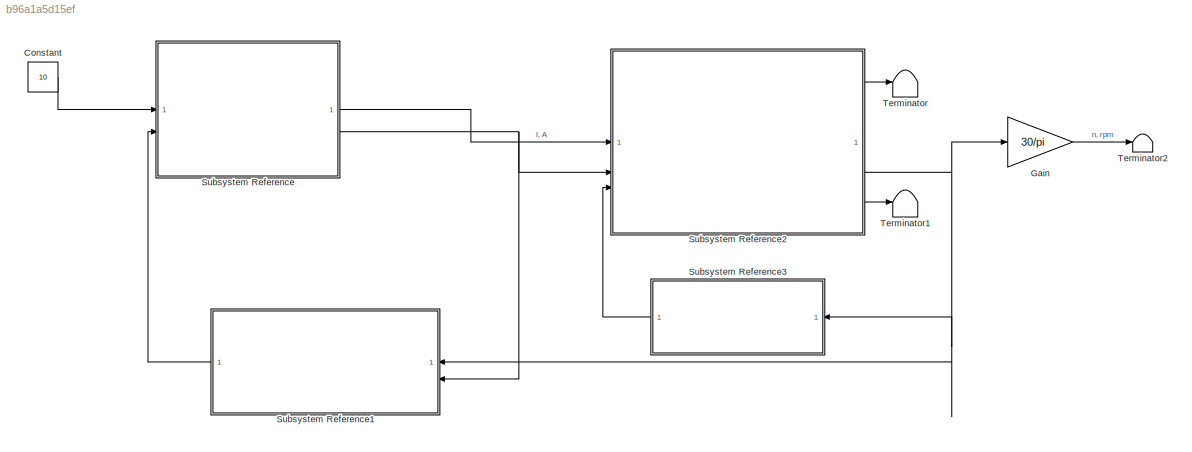
MODEL slx_b96a1a5d15ef
KIND model
CONFIG AbsTol = auto
CONFIG EnableMultiTasking = off
CONFIG FixedStep = auto
CONFIG MaxStep = auto
CONFIG MinStep = auto
CONFIG RelTol = 1e-3
CONFIG SampleTimeConstraint = Unconstrained
CONFIG SolverName = VariableStepAuto
CONFIG StartTime = 0.0
CONFIG StopTime = 10.0
BLOCK [Constant] Constant
  Value = 10
BLOCK [Gain] Gain
  Gain = 30/pi
BLOCK [SubSystem] Subsystem Reference
  L_a = L_a
  L_ew = L_ew
  R_a = R_a
  ReferencedSubsystem = InVoltage_to_AnchorCurrent
BLOCK [SubSystem] Subsystem Reference1
  C_omega = C_omega
  PortSchema = {"entries":[{"content":{"sides":[{"content":{"connectorIds":["In2","In1"]},"type":"ConnectorPlacement.EquallySpacedRectSide","uuid":"3b001cd2-0eb1-4e79-bfc0-23597a26966a"},{"content":{"connectorIds":["Out1"],"side":"RIGHT"},"type":"ConnectorPlacement.EquallySpacedRectSide","uuid":"d4852c84-8cb3-4d1c-be31-f1725de136a3"},{"content":{"side":"TOP"},"type":"ConnectorPlacement.EquallySpacedRectSide","uu...<+228ch>
  ReferencedSubsystem = Back_EMP
BLOCK [SubSystem] Subsystem Reference2
  C_M = C_M
  J_m = J_m
  ReferencedSubsystem = Mechanical_part
BLOCK [SubSystem] Subsystem Reference3
  Betta = Betta
  ReferencedSubsystem = Friction_Torque
BLOCK [Terminator] Terminator
BLOCK [Terminator] Terminator1
BLOCK [Terminator] Terminator2
LINE Constant:1 -> Subsystem Reference:1
LINE Gain:1 -> Terminator2:1
LINE Subsystem Reference1:1 -> Subsystem Reference:2
LINE Subsystem Reference2:1 -> Terminator:1
NET Subsystem Reference2:2 -> Gain:1, Subsystem Reference1:1, Subsystem Reference3:1
LINE Subsystem Reference2:3 -> Terminator1:1
LINE Subsystem Reference3:1 -> Subsystem Reference2:3
LINE Subsystem Reference:1 -> Subsystem Reference2:1
NET Subsystem Reference:2 -> Subsystem Reference1:2, Subsystem Reference2:2
note: NET lines group one-source signal fan-out (src -> all destinations, sorted); 1:1 wires keep LINE
